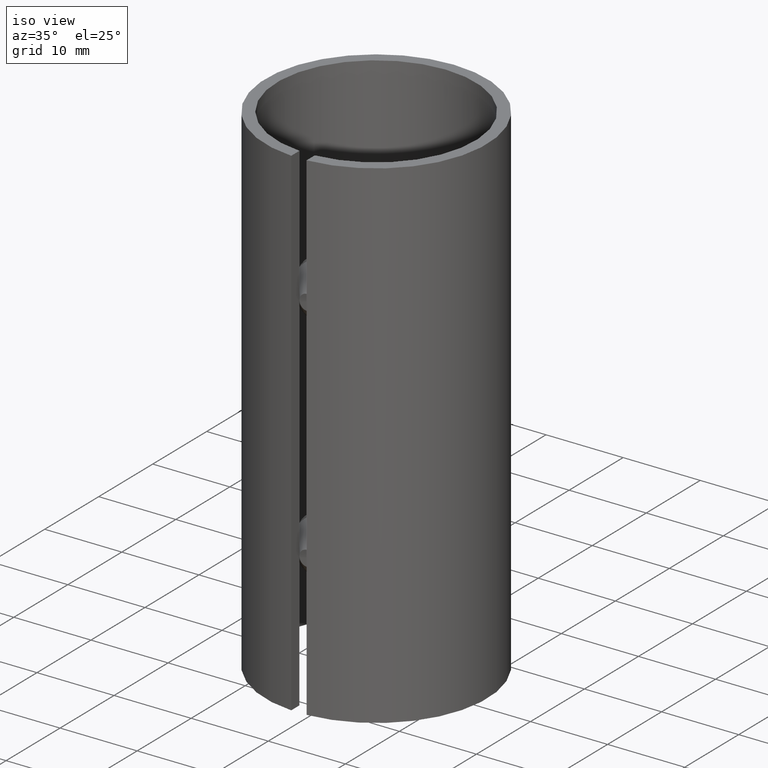
[diagram: clean part render]
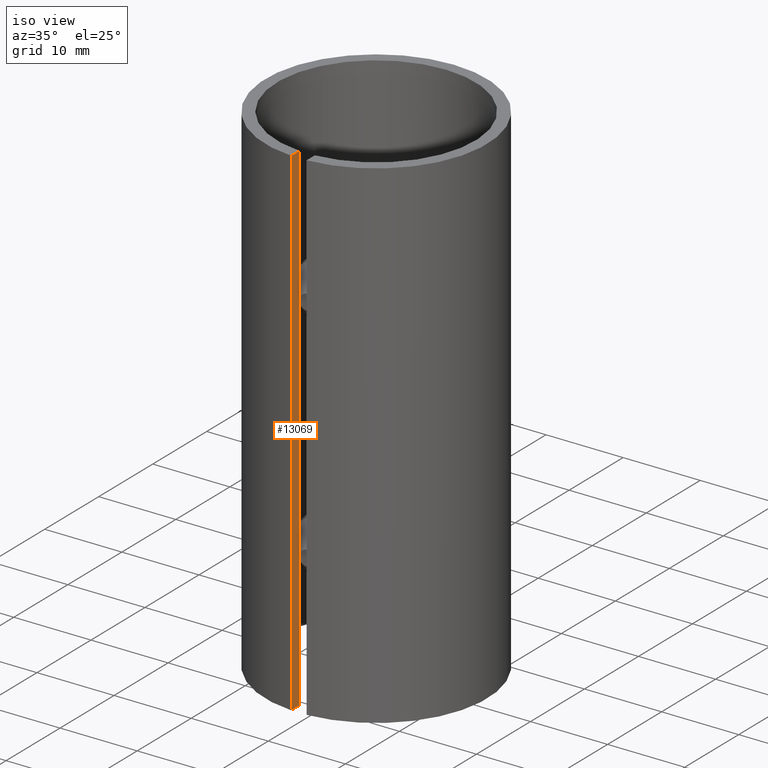
[diagram: same view with one face highlighted and labeled with its STEP entity id]
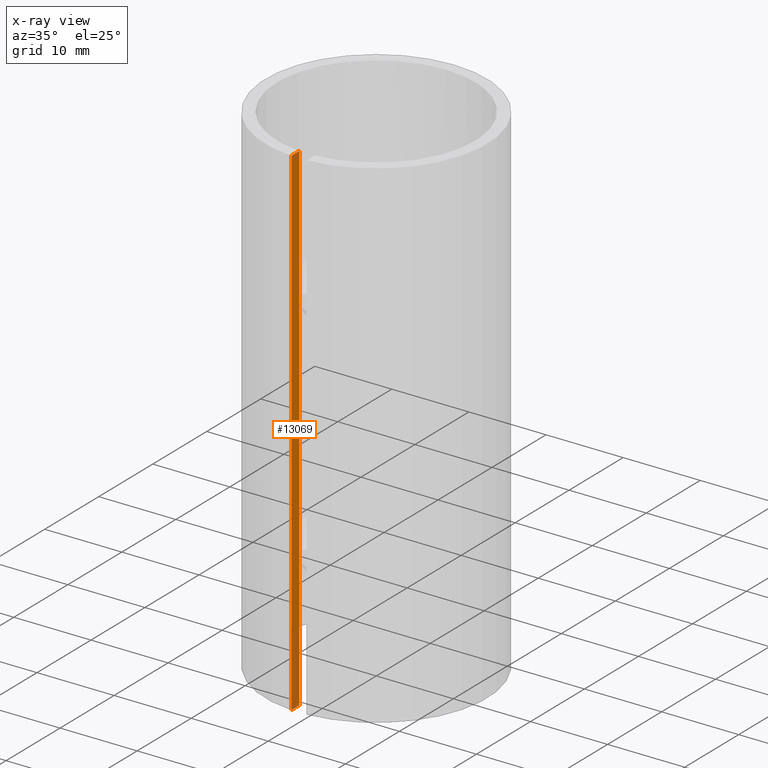
[diagram: x-ray of the same camera — body ghosted, the highlighted face saturated]
A machine part, iso view. The second image highlights one B-rep face of the part: STEP entity #13069.
The next image is the same camera in x-ray: the body ghosted, the highlighted face saturated — about 0% of this face is hidden behind the body in this view.
In plain terms, the highlighted planar face has unit normal (-1, 0, 0).
Its self-contained STEP definition (entity closure, byte-faithful):
#375 = VECTOR ( 'NONE', #1647, 1000.000000000000000 ) ;
#624 = CARTESIAN_POINT ( 'NONE',  ( -1.000000000000000000, -4.350000000000001421, 32.50000000000000000 ) ) ;
#664 = DIRECTION ( 'NONE',  ( 0.000000000000000000, 0.000000000000000000, 1.000000000000000000 ) ) ;
#1293 = EDGE_CURVE ( 'NONE', #10084, #4995, #7524, .T. ) ;
#1561 = VECTOR ( 'NONE', #9689, 1000.000000000000000 ) ;
#1647 = DIRECTION ( 'NONE',  ( -0.000000000000000000, -1.000000000000000000, 0.000000000000000000 ) ) ;
#1722 = VECTOR ( 'NONE', #7258, 1000.000000000000000 ) ;
#2787 = PLANE ( 'NONE',  #13055 ) ;
#2868 = CARTESIAN_POINT ( 'NONE',  ( -1.000000000000000000, -14.31511439004243691, -32.50000000000000000 ) ) ;
#3581 = CARTESIAN_POINT ( 'NONE',  ( -1.000000000000000222, -12.81103040352336642, -32.50000000000000000 ) ) ;
#4877 = EDGE_LOOP ( 'NONE', ( #12512, #9762, #13489, #7006 ) ) ;
#4995 = VERTEX_POINT ( 'NONE', #8529 ) ;
#5676 = VERTEX_POINT ( 'NONE', #12152 ) ;
#7006 = ORIENTED_EDGE ( 'NONE', *, *, #1293, .F. ) ;
#7258 = DIRECTION ( 'NONE',  ( -0.000000000000000000, -1.000000000000000000, 0.000000000000000000 ) ) ;
#7360 = DIRECTION ( 'NONE',  ( 0.000000000000000000, 0.000000000000000000, 1.000000000000000000 ) ) ;
#7524 = LINE ( 'NONE', #13992, #12291 ) ;
#7922 = EDGE_CURVE ( 'NONE', #9787, #5676, #10062, .T. ) ;
#8529 = CARTESIAN_POINT ( 'NONE',  ( -1.000000000000000000, -14.31511439004243691, 32.50000000000000000 ) ) ;
#8710 = FACE_OUTER_BOUND ( 'NONE', #4877, .T. ) ;
#9572 = EDGE_CURVE ( 'NONE', #5676, #4995, #13993, .T. ) ;
#9689 = DIRECTION ( 'NONE',  ( 0.000000000000000000, 0.000000000000000000, 1.000000000000000000 ) ) ;
#9762 = ORIENTED_EDGE ( 'NONE', *, *, #7922, .T. ) ;
#9787 = VERTEX_POINT ( 'NONE', #3581 ) ;
#10062 = LINE ( 'NONE', #13116, #1561 ) ;
#10084 = VERTEX_POINT ( 'NONE', #2868 ) ;
#10304 = CARTESIAN_POINT ( 'NONE',  ( -1.000000000000000000, -4.350000000000001421, -32.50000000000000000 ) ) ;
#10393 = CARTESIAN_POINT ( 'NONE',  ( -1.000000000000000000, -4.350000000000001421, -32.50000000000000000 ) ) ;
#10443 = DIRECTION ( 'NONE',  ( -1.000000000000000000, 0.000000000000000000, 0.000000000000000000 ) ) ;
#12152 = CARTESIAN_POINT ( 'NONE',  ( -1.000000000000000000, -12.81103040352336286, 32.50000000000000000 ) ) ;
#12291 = VECTOR ( 'NONE', #7360, 1000.000000000000000 ) ;
#12481 = EDGE_CURVE ( 'NONE', #9787, #10084, #13976, .T. ) ;
#12512 = ORIENTED_EDGE ( 'NONE', *, *, #12481, .F. ) ;
#13055 = AXIS2_PLACEMENT_3D ( 'NONE', #10393, #10443, #664 ) ;
#13069 = ADVANCED_FACE ( 'NONE', ( #8710 ), #2787, .F. ) ;
#13116 = CARTESIAN_POINT ( 'NONE',  ( -1.000000000000000000, -12.81103040352336286, 32.50000000000000000 ) ) ;
#13489 = ORIENTED_EDGE ( 'NONE', *, *, #9572, .T. ) ;
#13976 = LINE ( 'NONE', #10304, #375 ) ;
#13992 = CARTESIAN_POINT ( 'NONE',  ( -1.000000000000000000, -14.31511439004243691, 32.50000000000000000 ) ) ;
#13993 = LINE ( 'NONE', #624, #1722 ) ;